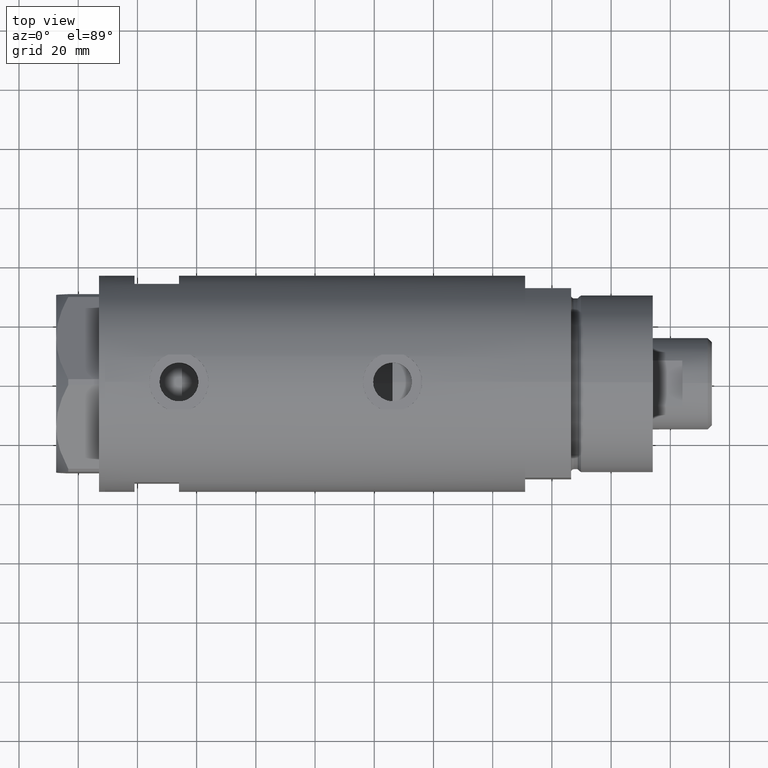
[diagram: clean part render]
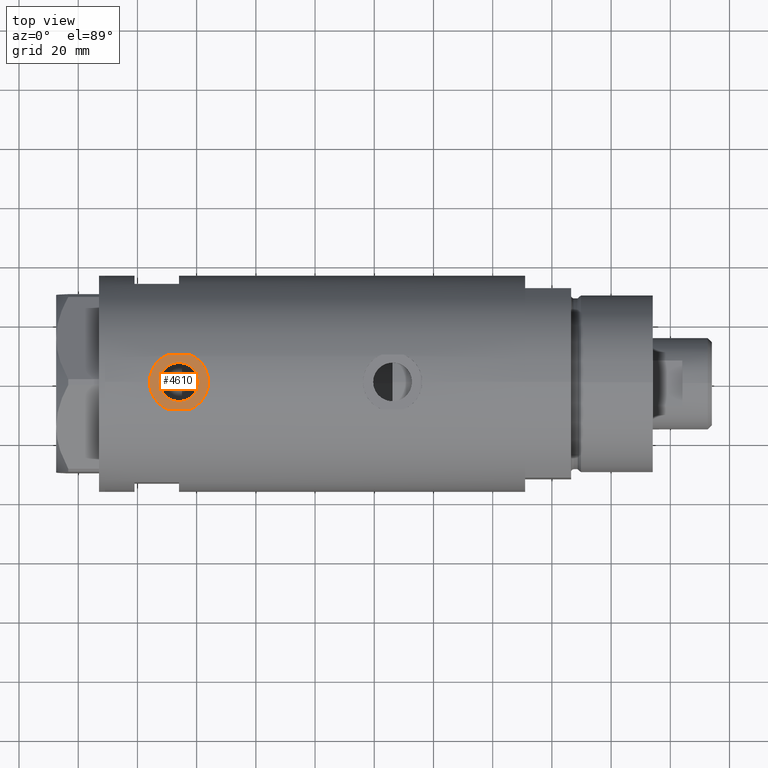
[diagram: same view with one face highlighted and labeled with its STEP entity id]
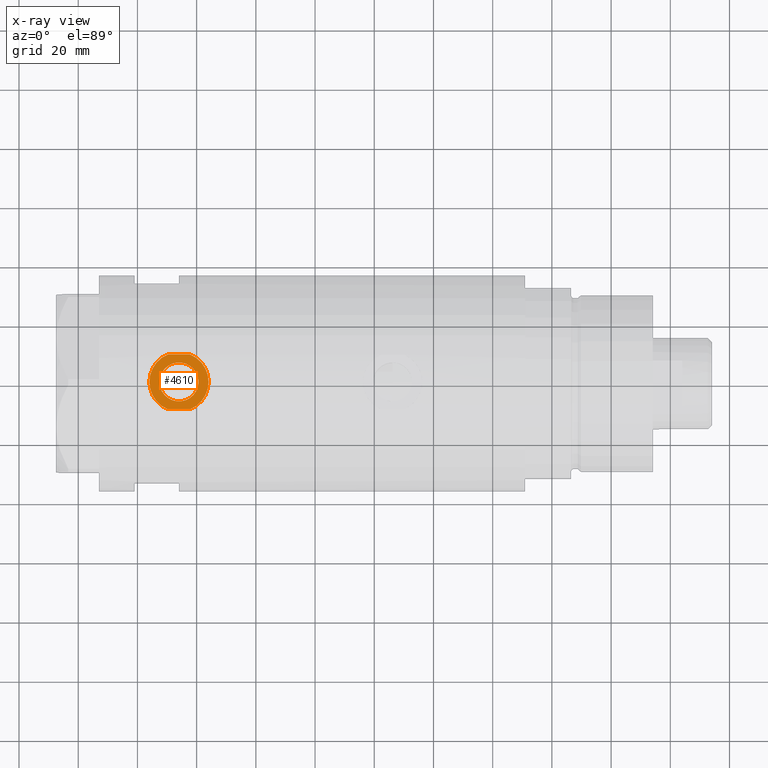
[diagram: x-ray of the same camera — body ghosted, the highlighted face saturated]
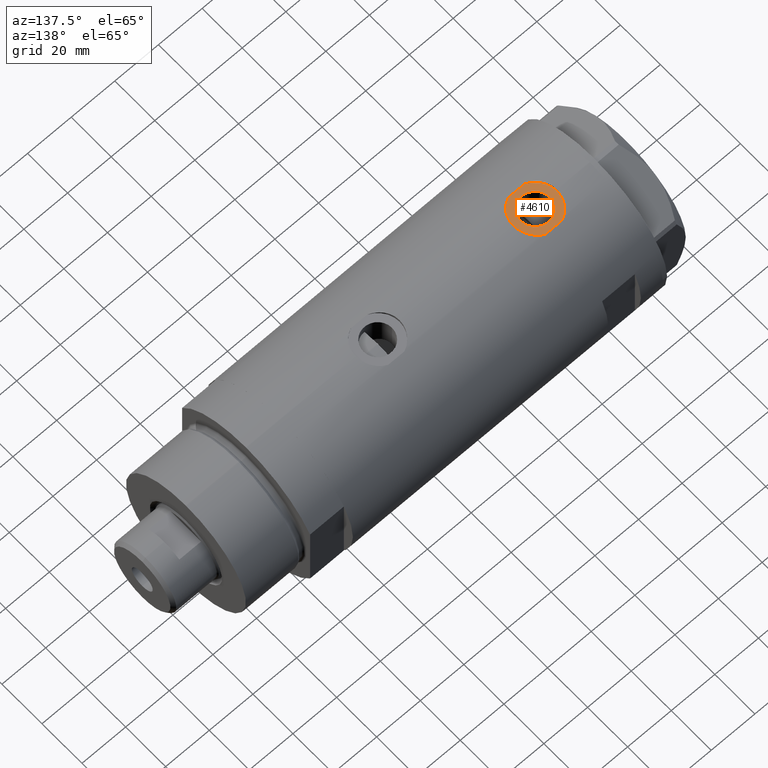
[diagram: same view with one face highlighted and labeled with its STEP entity id]
A machine part, top view. The second image highlights one B-rep face of the part: STEP entity #4610.
The next image is the same camera in x-ray: the body ghosted, the highlighted face saturated — about 0% of this face is hidden behind the body in this view.
A second angle (auxiliary view) of the same face is appended — the face is thin or edge-on in the first view.
In plain terms, the highlighted planar face has unit normal (0, 0, 1).
Its self-contained STEP definition (entity closure, byte-faithful):
#195 = ORIENTED_EDGE ( 'NONE', *, *, #4465, .T. ) ;
#407 = DIRECTION ( 'NONE',  ( 1.000000000000000000, 0.000000000000000000, 0.000000000000000000 ) ) ;
#475 = EDGE_LOOP ( 'NONE', ( #195, #3036, #987, #2872, #514 ) ) ;
#514 = ORIENTED_EDGE ( 'NONE', *, *, #1924, .F. ) ;
#606 = DIRECTION ( 'NONE',  ( 1.000000000000000000, 0.000000000000000000, 0.000000000000000000 ) ) ;
#630 = EDGE_CURVE ( 'NONE', #2208, #4613, #2606, .T. ) ;
#670 = PLANE ( 'NONE',  #3754 ) ;
#724 = CARTESIAN_POINT ( 'NONE',  ( 35.29999999999999716, -9.282241108697837362, 42.25478495245234711 ) ) ;
#861 = CARTESIAN_POINT ( 'NONE',  ( 35.29999999999999716, 0.000000000000000000, 45.97499999999999432 ) ) ;
#893 = CARTESIAN_POINT ( 'NONE',  ( 35.29999999999999716, 8.058175938389587461E-16, 52.55499999999999972 ) ) ;
#987 = ORIENTED_EDGE ( 'NONE', *, *, #630, .T. ) ;
#991 = CARTESIAN_POINT ( 'NONE',  ( 35.29999999999999716, 0.000000000000000000, 35.97499999999999432 ) ) ;
#997 = CIRCLE ( 'NONE', #3391, 6.580000000000002736 ) ;
#1052 = CIRCLE ( 'NONE', #2284, 10.00000000000000178 ) ;
#1258 = DIRECTION ( 'NONE',  ( 0.000000000000000000, 0.000000000000000000, -1.000000000000000000 ) ) ;
#1424 = DIRECTION ( 'NONE',  ( 0.000000000000000000, 0.000000000000000000, -1.000000000000000000 ) ) ;
#1445 = AXIS2_PLACEMENT_3D ( 'NONE', #4128, #407, #4106 ) ;
#1468 = VERTEX_POINT ( 'NONE', #2152 ) ;
#1504 = DIRECTION ( 'NONE',  ( 0.000000000000000000, 0.000000000000000000, 1.000000000000000000 ) ) ;
#1581 = DIRECTION ( 'NONE',  ( -0.000000000000000000, -0.000000000000000000, -1.000000000000000000 ) ) ;
#1599 = EDGE_CURVE ( 'NONE', #3564, #2763, #3311, .T. ) ;
#1619 = DIRECTION ( 'NONE',  ( 0.000000000000000000, 0.000000000000000000, -1.000000000000000000 ) ) ;
#1733 = FACE_BOUND ( 'NONE', #3148, .T. ) ;
#1792 = DIRECTION ( 'NONE',  ( 0.000000000000000000, 0.000000000000000000, -1.000000000000000000 ) ) ;
#1857 = EDGE_CURVE ( 'NONE', #2763, #3564, #997, .T. ) ;
#1868 = VERTEX_POINT ( 'NONE', #3722 ) ;
#1924 = EDGE_CURVE ( 'NONE', #1468, #1868, #4451, .T. ) ;
#1962 = CARTESIAN_POINT ( 'NONE',  ( 35.29999999999999716, 0.000000000000000000, 45.97499999999999432 ) ) ;
#1997 = AXIS2_PLACEMENT_3D ( 'NONE', #861, #2774, #1258 ) ;
#2152 = CARTESIAN_POINT ( 'NONE',  ( 35.29999999999999716, 9.282241108697837362, 49.69521504754764152 ) ) ;
#2208 = VERTEX_POINT ( 'NONE', #724 ) ;
#2255 = DIRECTION ( 'NONE',  ( 0.000000000000000000, 0.000000000000000000, -1.000000000000000000 ) ) ;
#2284 = AXIS2_PLACEMENT_3D ( 'NONE', #3792, #2359, #1619 ) ;
#2359 = DIRECTION ( 'NONE',  ( 1.000000000000000000, 0.000000000000000000, 0.000000000000000000 ) ) ;
#2567 = CARTESIAN_POINT ( 'NONE',  ( 35.29999999999999716, -9.282241108697837362, -70.97499999999999432 ) ) ;
#2606 = CIRCLE ( 'NONE', #1445, 10.00000000000000178 ) ;
#2618 = AXIS2_PLACEMENT_3D ( 'NONE', #3294, #3698, #1792 ) ;
#2650 = VERTEX_POINT ( 'NONE', #4722 ) ;
#2763 = VERTEX_POINT ( 'NONE', #4364 ) ;
#2774 = DIRECTION ( 'NONE',  ( 1.000000000000000000, 0.000000000000000000, 0.000000000000000000 ) ) ;
#2855 = FACE_OUTER_BOUND ( 'NONE', #475, .T. ) ;
#2872 = ORIENTED_EDGE ( 'NONE', *, *, #3401, .T. ) ;
#2894 = ORIENTED_EDGE ( 'NONE', *, *, #1857, .F. ) ;
#2959 = DIRECTION ( 'NONE',  ( 1.000000000000000000, 0.000000000000000000, 0.000000000000000000 ) ) ;
#3036 = ORIENTED_EDGE ( 'NONE', *, *, #3321, .F. ) ;
#3148 = EDGE_LOOP ( 'NONE', ( #2894, #4184 ) ) ;
#3173 = CARTESIAN_POINT ( 'NONE',  ( 35.29999999999999716, 0.000000000000000000, 45.97499999999999432 ) ) ;
#3294 = CARTESIAN_POINT ( 'NONE',  ( 35.29999999999999716, 0.000000000000000000, 45.97499999999999432 ) ) ;
#3311 = CIRCLE ( 'NONE', #1997, 6.580000000000002736 ) ;
#3321 = EDGE_CURVE ( 'NONE', #2208, #2650, #4747, .T. ) ;
#3391 = AXIS2_PLACEMENT_3D ( 'NONE', #1962, #2959, #2255 ) ;
#3401 = EDGE_CURVE ( 'NONE', #4613, #1868, #4709, .T. ) ;
#3564 = VERTEX_POINT ( 'NONE', #893 ) ;
#3698 = DIRECTION ( 'NONE',  ( 1.000000000000000000, 0.000000000000000000, 0.000000000000000000 ) ) ;
#3722 = CARTESIAN_POINT ( 'NONE',  ( 35.29999999999999716, 9.282241108697837362, 42.25478495245234711 ) ) ;
#3754 = AXIS2_PLACEMENT_3D ( 'NONE', #3173, #606, #1424 ) ;
#3792 = CARTESIAN_POINT ( 'NONE',  ( 35.29999999999999716, 0.000000000000000000, 45.97499999999999432 ) ) ;
#3931 = VECTOR ( 'NONE', #1581, 1000.000000000000000 ) ;
#4106 = DIRECTION ( 'NONE',  ( 0.000000000000000000, 0.000000000000000000, -1.000000000000000000 ) ) ;
#4128 = CARTESIAN_POINT ( 'NONE',  ( 35.29999999999999716, 0.000000000000000000, 45.97499999999999432 ) ) ;
#4174 = CARTESIAN_POINT ( 'NONE',  ( 35.29999999999999716, 9.282241108697837362, -70.97499999999999432 ) ) ;
#4184 = ORIENTED_EDGE ( 'NONE', *, *, #1599, .F. ) ;
#4313 = VECTOR ( 'NONE', #1504, 1000.000000000000000 ) ;
#4364 = CARTESIAN_POINT ( 'NONE',  ( 35.29999999999999716, 0.000000000000000000, 39.39499999999999602 ) ) ;
#4451 = LINE ( 'NONE', #4174, #3931 ) ;
#4465 = EDGE_CURVE ( 'NONE', #1468, #2650, #1052, .T. ) ;
#4610 = ADVANCED_FACE ( 'NONE', ( #1733, #2855 ), #670, .T. ) ;
#4613 = VERTEX_POINT ( 'NONE', #991 ) ;
#4709 = CIRCLE ( 'NONE', #2618, 10.00000000000000178 ) ;
#4722 = CARTESIAN_POINT ( 'NONE',  ( 35.29999999999999716, -9.282241108697837362, 49.69521504754764152 ) ) ;
#4747 = LINE ( 'NONE', #2567, #4313 ) ;